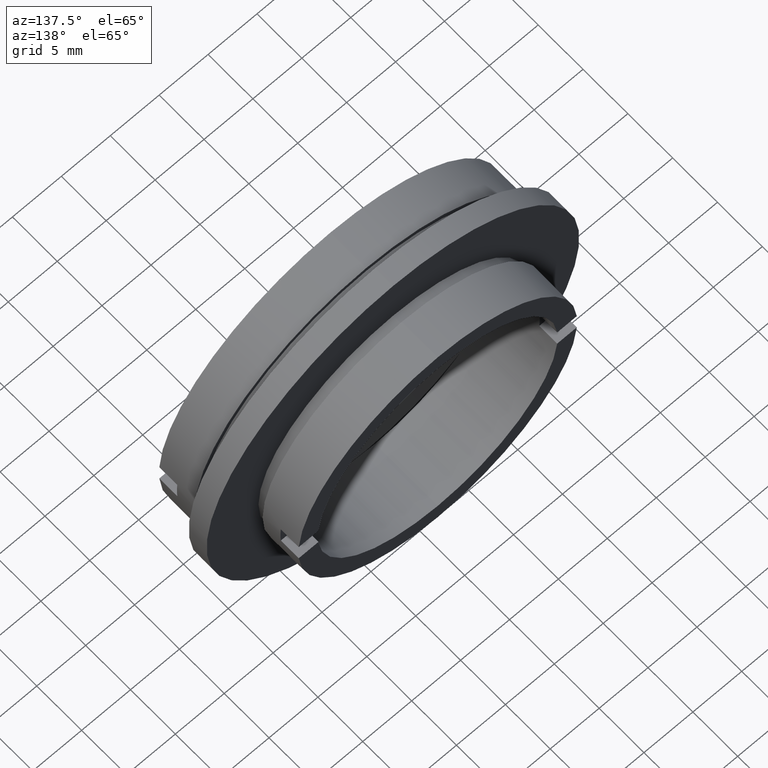
[diagram: clean part render]
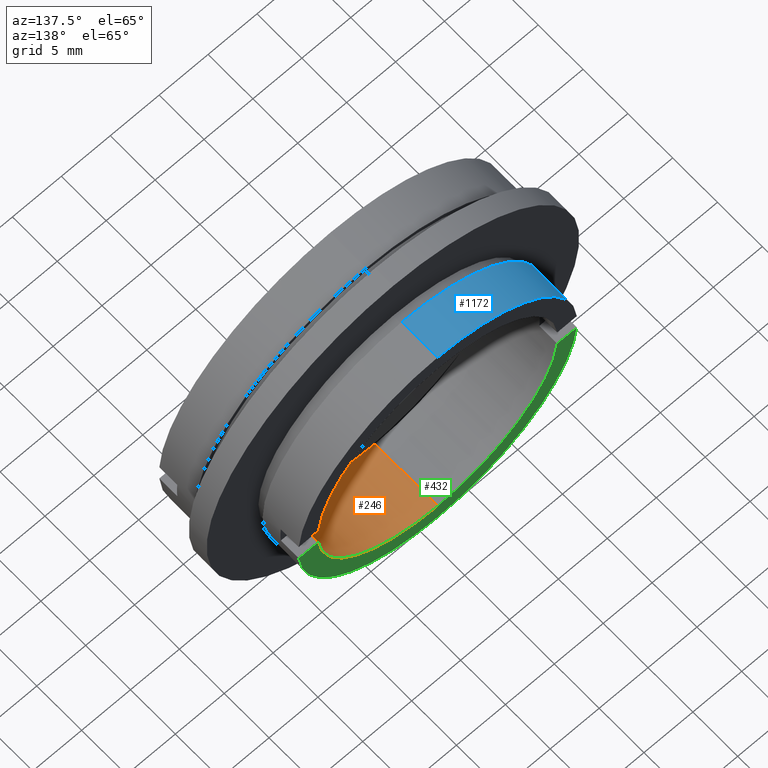
[diagram: same view with three faces highlighted in distinct colors, each labeled with its STEP entity id]
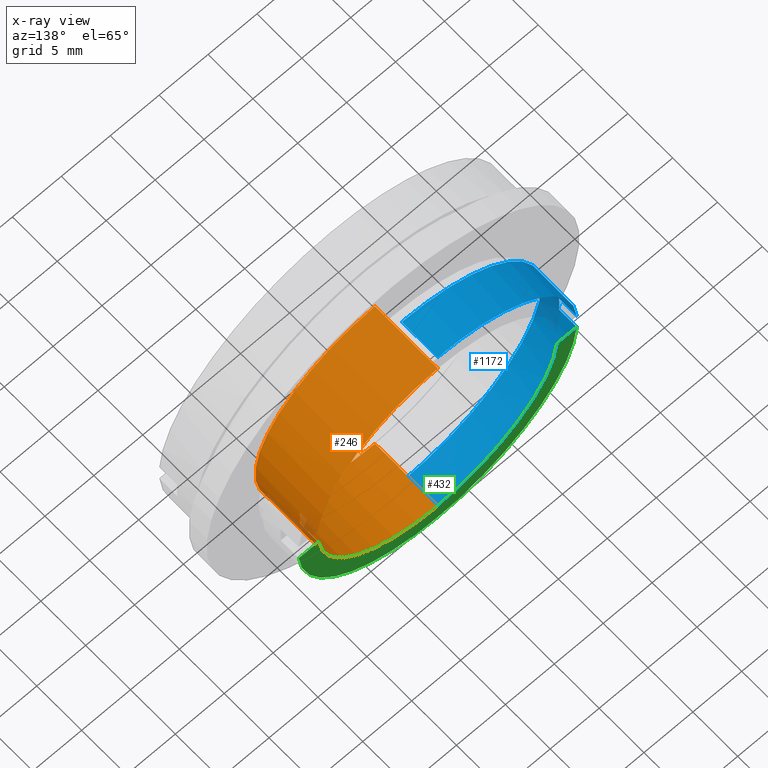
[diagram: x-ray of the same camera — body ghosted, the three highlighted faces saturated]
A machine part, auxiliary view with three faces highlighted in distinct colors.
The next image is the same camera in x-ray (body ghosted, the three faces saturated) — at least one of them is partly hidden behind the body in this view.
Their STEP definitions:

[orange] entity #246 — the highlighted cylindrical surface (partial cylindrical patch) has radius 12.25 mm, axis along (-0, 1, -0).
#44 = CARTESIAN_POINT ( 'NONE',  ( 12.20911544707478000, 22.67749945107591400, -1.000000000000000000 ) ) ;
#47 = DIRECTION ( 'NONE',  ( 0.0000000000000000000, -1.000000000000000000, 0.0000000000000000000 ) ) ;
#53 = CARTESIAN_POINT ( 'NONE',  ( 0.0000000000000000000, 22.67749945107591400, 12.25000000000000000 ) ) ;
#68 = CARTESIAN_POINT ( 'NONE',  ( 0.0000000000000000000, 10.00000000000000000, 0.0000000000000000000 ) ) ;
#80 = DIRECTION ( 'NONE',  ( -0.0000000000000000000, 1.000000000000000000, -0.0000000000000000000 ) ) ;
#109 = VERTEX_POINT ( 'NONE', #1060 ) ;
#121 = EDGE_LOOP ( 'NONE', ( #210, #378, #1267, #673, #345, #857, #556, #536 ) ) ;
#132 = CIRCLE ( 'NONE', #415, 12.24999999999999800 ) ;
#165 = CARTESIAN_POINT ( 'NONE',  ( 0.0000000000000000000, 12.00000000000000000, 0.0000000000000000000 ) ) ;
#174 = CIRCLE ( 'NONE', #543, 12.25000000000000000 ) ;
#199 = VECTOR ( 'NONE', #80, 1000.000000000000000 ) ;
#210 = ORIENTED_EDGE ( 'NONE', *, *, #1276, .F. ) ;
#224 = LINE ( 'NONE', #53, #199 ) ;
#227 = AXIS2_PLACEMENT_3D ( 'NONE', #1226, #715, #934 ) ;
#246 = ADVANCED_FACE ( 'NONE', ( #1125 ), #1195, .F. ) ;
#256 = LINE ( 'NONE', #44, #387 ) ;
#270 = VERTEX_POINT ( 'NONE', #825 ) ;
#297 = VERTEX_POINT ( 'NONE', #1273 ) ;
#318 = CIRCLE ( 'NONE', #881, 12.25000000000000000 ) ;
#324 = VERTEX_POINT ( 'NONE', #947 ) ;
#345 = ORIENTED_EDGE ( 'NONE', *, *, #418, .F. ) ;
#378 = ORIENTED_EDGE ( 'NONE', *, *, #1337, .F. ) ;
#383 = CARTESIAN_POINT ( 'NONE',  ( 0.0000000000000000000, 5.000000000000000900, 0.0000000000000000000 ) ) ;
#387 = VECTOR ( 'NONE', #47, 1000.000000000000000 ) ;
#406 = DIRECTION ( 'NONE',  ( -0.0000000000000000000, 1.000000000000000000, -0.0000000000000000000 ) ) ;
#415 = AXIS2_PLACEMENT_3D ( 'NONE', #666, #656, #604 ) ;
#418 = EDGE_CURVE ( 'NONE', #977, #930, #1124, .T. ) ;
#423 = CARTESIAN_POINT ( 'NONE',  ( 12.20911544707478100, 22.67749945107591400, 1.000000000000002900 ) ) ;
#447 = CARTESIAN_POINT ( 'NONE',  ( 12.20911544707478100, 10.00000000000000000, 1.000000000000001300 ) ) ;
#453 = CARTESIAN_POINT ( 'NONE',  ( 1.500192328955507700E-015, 5.000000000000000900, -12.25000000000000000 ) ) ;
#454 = CARTESIAN_POINT ( 'NONE',  ( 0.0000000000000000000, 12.00000000000000000, 12.24999999999999800 ) ) ;
#536 = ORIENTED_EDGE ( 'NONE', *, *, #685, .T. ) ;
#543 = AXIS2_PLACEMENT_3D ( 'NONE', #383, #1304, #1297 ) ;
#551 = CARTESIAN_POINT ( 'NONE',  ( 12.20911544707477800, 12.00000000000000000, 1.000000000000001600 ) ) ;
#556 = ORIENTED_EDGE ( 'NONE', *, *, #753, .F. ) ;
#604 = DIRECTION ( 'NONE',  ( 0.0000000000000000000, 0.0000000000000000000, 1.000000000000000000 ) ) ;
#656 = DIRECTION ( 'NONE',  ( -0.0000000000000000000, 1.000000000000000000, -0.0000000000000000000 ) ) ;
#662 = DIRECTION ( 'NONE',  ( 0.0000000000000000000, 0.0000000000000000000, 1.000000000000000000 ) ) ;
#666 = CARTESIAN_POINT ( 'NONE',  ( 0.0000000000000000000, 12.00000000000000000, 0.0000000000000000000 ) ) ;
#673 = ORIENTED_EDGE ( 'NONE', *, *, #858, .T. ) ;
#685 = EDGE_CURVE ( 'NONE', #270, #324, #132, .T. ) ;
#703 = DIRECTION ( 'NONE',  ( -0.0000000000000000000, 1.000000000000000000, -0.0000000000000000000 ) ) ;
#715 = DIRECTION ( 'NONE',  ( -0.0000000000000000000, 1.000000000000000000, -0.0000000000000000000 ) ) ;
#753 = EDGE_CURVE ( 'NONE', #270, #109, #256, .T. ) ;
#782 = EDGE_CURVE ( 'NONE', #297, #814, #224, .T. ) ;
#814 = VERTEX_POINT ( 'NONE', #454 ) ;
#816 = LINE ( 'NONE', #956, #1254 ) ;
#819 = VECTOR ( 'NONE', #406, 1000.000000000000000 ) ;
#825 = CARTESIAN_POINT ( 'NONE',  ( 12.20911544707477800, 12.00000000000000000, -0.9999999999999978900 ) ) ;
#857 = ORIENTED_EDGE ( 'NONE', *, *, #1050, .F. ) ;
#858 = EDGE_CURVE ( 'NONE', #814, #930, #1157, .T. ) ;
#881 = AXIS2_PLACEMENT_3D ( 'NONE', #68, #1139, #1141 ) ;
#930 = VERTEX_POINT ( 'NONE', #551 ) ;
#934 = DIRECTION ( 'NONE',  ( 0.0000000000000000000, 0.0000000000000000000, 1.000000000000000000 ) ) ;
#947 = CARTESIAN_POINT ( 'NONE',  ( 1.500192328955507500E-015, 12.00000000000000000, -12.24999999999999800 ) ) ;
#956 = CARTESIAN_POINT ( 'NONE',  ( 1.500192328955507700E-015, 22.67749945107591400, -12.25000000000000000 ) ) ;
#975 = VERTEX_POINT ( 'NONE', #453 ) ;
#977 = VERTEX_POINT ( 'NONE', #447 ) ;
#996 = DIRECTION ( 'NONE',  ( -0.0000000000000000000, 1.000000000000000000, -0.0000000000000000000 ) ) ;
#1050 = EDGE_CURVE ( 'NONE', #109, #977, #318, .T. ) ;
#1060 = CARTESIAN_POINT ( 'NONE',  ( 12.20911544707478100, 10.00000000000000000, -0.9999999999999974500 ) ) ;
#1124 = LINE ( 'NONE', #423, #819 ) ;
#1125 = FACE_OUTER_BOUND ( 'NONE', #121, .T. ) ;
#1139 = DIRECTION ( 'NONE',  ( -0.0000000000000000000, -1.000000000000000000, -0.0000000000000000000 ) ) ;
#1141 = DIRECTION ( 'NONE',  ( 0.0000000000000000000, 0.0000000000000000000, -1.000000000000000000 ) ) ;
#1157 = CIRCLE ( 'NONE', #1188, 12.24999999999999800 ) ;
#1188 = AXIS2_PLACEMENT_3D ( 'NONE', #165, #996, #662 ) ;
#1195 = CYLINDRICAL_SURFACE ( 'NONE', #227, 12.25000000000000000 ) ;
#1226 = CARTESIAN_POINT ( 'NONE',  ( 0.0000000000000000000, 22.67749945107591400, 0.0000000000000000000 ) ) ;
#1254 = VECTOR ( 'NONE', #703, 1000.000000000000000 ) ;
#1267 = ORIENTED_EDGE ( 'NONE', *, *, #782, .T. ) ;
#1273 = CARTESIAN_POINT ( 'NONE',  ( 0.0000000000000000000, 5.000000000000000900, 12.25000000000000000 ) ) ;
#1276 = EDGE_CURVE ( 'NONE', #975, #324, #816, .T. ) ;
#1297 = DIRECTION ( 'NONE',  ( 0.0000000000000000000, 0.0000000000000000000, 1.000000000000000000 ) ) ;
#1304 = DIRECTION ( 'NONE',  ( -0.0000000000000000000, 1.000000000000000000, -0.0000000000000000000 ) ) ;
#1337 = EDGE_CURVE ( 'NONE', #297, #975, #174, .T. ) ;

[blue] entity #1172 — the highlighted cylindrical surface (partial cylindrical patch) has radius 14.25 mm, axis along (-0, 1, -0).
#55 = CARTESIAN_POINT ( 'NONE',  ( -14.21486897582949800, 10.00000000000000000, -0.9999999999999974500 ) ) ;
#75 = EDGE_LOOP ( 'NONE', ( #1030, #333, #1015, #872, #107, #664, #527, #1282 ) ) ;
#107 = ORIENTED_EDGE ( 'NONE', *, *, #885, .F. ) ;
#130 = LINE ( 'NONE', #1265, #999 ) ;
#148 = CARTESIAN_POINT ( 'NONE',  ( 1.745121688784978200E-015, 22.67749945107591400, -14.24999999999999800 ) ) ;
#159 = AXIS2_PLACEMENT_3D ( 'NONE', #817, #920, #200 ) ;
#166 = DIRECTION ( 'NONE',  ( 0.0000000000000000000, 0.0000000000000000000, 1.000000000000000000 ) ) ;
#188 = AXIS2_PLACEMENT_3D ( 'NONE', #644, #640, #623 ) ;
#194 = CYLINDRICAL_SURFACE ( 'NONE', #855, 14.24999999999999800 ) ;
#200 = DIRECTION ( 'NONE',  ( 0.0000000000000000000, 0.0000000000000000000, -1.000000000000000000 ) ) ;
#236 = CARTESIAN_POINT ( 'NONE',  ( 0.0000000000000000000, 12.00000000000000000, 0.0000000000000000000 ) ) ;
#239 = EDGE_CURVE ( 'NONE', #860, #384, #895, .T. ) ;
#252 = CARTESIAN_POINT ( 'NONE',  ( 1.745121688784978200E-015, 12.00000000000000000, -14.24999999999999800 ) ) ;
#253 = VERTEX_POINT ( 'NONE', #501 ) ;
#285 = EDGE_CURVE ( 'NONE', #820, #890, #1212, .T. ) ;
#314 = FACE_OUTER_BOUND ( 'NONE', #75, .T. ) ;
#328 = LINE ( 'NONE', #148, #732 ) ;
#333 = ORIENTED_EDGE ( 'NONE', *, *, #419, .T. ) ;
#350 = DIRECTION ( 'NONE',  ( -0.0000000000000000000, 1.000000000000000000, -0.0000000000000000000 ) ) ;
#362 = CARTESIAN_POINT ( 'NONE',  ( 0.0000000000000000000, 22.67749945107591400, 14.24999999999999800 ) ) ;
#384 = VERTEX_POINT ( 'NONE', #1069 ) ;
#392 = CIRCLE ( 'NONE', #188, 14.24999999999999800 ) ;
#396 = EDGE_CURVE ( 'NONE', #253, #384, #875, .T. ) ;
#412 = AXIS2_PLACEMENT_3D ( 'NONE', #1039, #1053, #1257 ) ;
#419 = EDGE_CURVE ( 'NONE', #534, #253, #844, .T. ) ;
#455 = EDGE_CURVE ( 'NONE', #534, #522, #328, .T. ) ;
#468 = CARTESIAN_POINT ( 'NONE',  ( 1.745121688784978200E-015, 8.000000000000000000, -14.24999999999999800 ) ) ;
#501 = CARTESIAN_POINT ( 'NONE',  ( 0.0000000000000000000, 8.000000000000000000, 14.24999999999999800 ) ) ;
#512 = DIRECTION ( 'NONE',  ( -0.0000000000000000000, 1.000000000000000000, -0.0000000000000000000 ) ) ;
#522 = VERTEX_POINT ( 'NONE', #252 ) ;
#527 = ORIENTED_EDGE ( 'NONE', *, *, #915, .F. ) ;
#534 = VERTEX_POINT ( 'NONE', #468 ) ;
#579 = DIRECTION ( 'NONE',  ( 0.0000000000000000000, -1.000000000000000000, 0.0000000000000000000 ) ) ;
#582 = CARTESIAN_POINT ( 'NONE',  ( -14.21486897582949800, 12.00000000000000000, 1.000000000000001600 ) ) ;
#594 = CARTESIAN_POINT ( 'NONE',  ( -14.21486897582949600, 22.67749945107591400, -1.000000000000000000 ) ) ;
#606 = CARTESIAN_POINT ( 'NONE',  ( -14.21486897582949800, 10.00000000000000000, 1.000000000000001300 ) ) ;
#609 = DIRECTION ( 'NONE',  ( -0.0000000000000000000, 1.000000000000000000, -0.0000000000000000000 ) ) ;
#623 = DIRECTION ( 'NONE',  ( 0.0000000000000000000, 0.0000000000000000000, 1.000000000000000000 ) ) ;
#640 = DIRECTION ( 'NONE',  ( -0.0000000000000000000, 1.000000000000000000, -0.0000000000000000000 ) ) ;
#644 = CARTESIAN_POINT ( 'NONE',  ( 0.0000000000000000000, 12.00000000000000000, 0.0000000000000000000 ) ) ;
#664 = ORIENTED_EDGE ( 'NONE', *, *, #285, .F. ) ;
#681 = DIRECTION ( 'NONE',  ( -0.0000000000000000000, 1.000000000000000000, -0.0000000000000000000 ) ) ;
#727 = VERTEX_POINT ( 'NONE', #946 ) ;
#732 = VECTOR ( 'NONE', #894, 1000.000000000000000 ) ;
#736 = VECTOR ( 'NONE', #579, 1000.000000000000000 ) ;
#817 = CARTESIAN_POINT ( 'NONE',  ( 0.0000000000000000000, 10.00000000000000000, 0.0000000000000000000 ) ) ;
#820 = VERTEX_POINT ( 'NONE', #55 ) ;
#839 = AXIS2_PLACEMENT_3D ( 'NONE', #236, #512, #166 ) ;
#844 = CIRCLE ( 'NONE', #412, 14.24999999999999800 ) ;
#855 = AXIS2_PLACEMENT_3D ( 'NONE', #1029, #681, #938 ) ;
#859 = VECTOR ( 'NONE', #350, 1000.000000000000000 ) ;
#860 = VERTEX_POINT ( 'NONE', #582 ) ;
#865 = EDGE_CURVE ( 'NONE', #522, #727, #392, .T. ) ;
#872 = ORIENTED_EDGE ( 'NONE', *, *, #239, .F. ) ;
#875 = LINE ( 'NONE', #362, #859 ) ;
#885 = EDGE_CURVE ( 'NONE', #890, #860, #130, .T. ) ;
#890 = VERTEX_POINT ( 'NONE', #606 ) ;
#894 = DIRECTION ( 'NONE',  ( -0.0000000000000000000, 1.000000000000000000, -0.0000000000000000000 ) ) ;
#895 = CIRCLE ( 'NONE', #839, 14.24999999999999800 ) ;
#915 = EDGE_CURVE ( 'NONE', #727, #820, #1034, .T. ) ;
#920 = DIRECTION ( 'NONE',  ( 0.0000000000000000000, 1.000000000000000000, 0.0000000000000000000 ) ) ;
#938 = DIRECTION ( 'NONE',  ( 0.0000000000000000000, 0.0000000000000000000, 1.000000000000000000 ) ) ;
#946 = CARTESIAN_POINT ( 'NONE',  ( -14.21486897582949800, 12.00000000000000000, -0.9999999999999978900 ) ) ;
#999 = VECTOR ( 'NONE', #609, 1000.000000000000000 ) ;
#1015 = ORIENTED_EDGE ( 'NONE', *, *, #396, .T. ) ;
#1029 = CARTESIAN_POINT ( 'NONE',  ( 0.0000000000000000000, 22.67749945107591400, 0.0000000000000000000 ) ) ;
#1030 = ORIENTED_EDGE ( 'NONE', *, *, #455, .F. ) ;
#1034 = LINE ( 'NONE', #594, #736 ) ;
#1039 = CARTESIAN_POINT ( 'NONE',  ( 0.0000000000000000000, 8.000000000000000000, 0.0000000000000000000 ) ) ;
#1053 = DIRECTION ( 'NONE',  ( -0.0000000000000000000, 1.000000000000000000, -0.0000000000000000000 ) ) ;
#1069 = CARTESIAN_POINT ( 'NONE',  ( 0.0000000000000000000, 12.00000000000000000, 14.24999999999999800 ) ) ;
#1172 = ADVANCED_FACE ( 'NONE', ( #314 ), #194, .T. ) ;
#1212 = CIRCLE ( 'NONE', #159, 14.24999999999999800 ) ;
#1257 = DIRECTION ( 'NONE',  ( 0.0000000000000000000, 0.0000000000000000000, 1.000000000000000000 ) ) ;
#1265 = CARTESIAN_POINT ( 'NONE',  ( -14.21486897582949800, 22.67749945107591400, 1.000000000000002900 ) ) ;
#1282 = ORIENTED_EDGE ( 'NONE', *, *, #865, .F. ) ;

[green] entity #432 — the highlighted planar face has unit normal (-0, 1, 0).
#46 = VECTOR ( 'NONE', #347, 1000.000000000000000 ) ;
#81 = VERTEX_POINT ( 'NONE', #867 ) ;
#95 = ORIENTED_EDGE ( 'NONE', *, *, #1292, .F. ) ;
#132 = CIRCLE ( 'NONE', #415, 12.24999999999999800 ) ;
#188 = AXIS2_PLACEMENT_3D ( 'NONE', #644, #640, #623 ) ;
#235 = EDGE_LOOP ( 'NONE', ( #847, #388, #973, #291, #95, #645 ) ) ;
#252 = CARTESIAN_POINT ( 'NONE',  ( 1.745121688784978200E-015, 12.00000000000000000, -14.24999999999999800 ) ) ;
#270 = VERTEX_POINT ( 'NONE', #825 ) ;
#291 = ORIENTED_EDGE ( 'NONE', *, *, #882, .F. ) ;
#324 = VERTEX_POINT ( 'NONE', #947 ) ;
#347 = DIRECTION ( 'NONE',  ( -1.000000000000000000, 0.0000000000000000000, 0.0000000000000000000 ) ) ;
#364 = AXIS2_PLACEMENT_3D ( 'NONE', #1181, #854, #599 ) ;
#376 = CARTESIAN_POINT ( 'NONE',  ( 0.0000000000000000000, 12.00000000000000000, 0.0000000000000000000 ) ) ;
#388 = ORIENTED_EDGE ( 'NONE', *, *, #1160, .T. ) ;
#389 = PLANE ( 'NONE',  #1201 ) ;
#392 = CIRCLE ( 'NONE', #188, 14.24999999999999800 ) ;
#407 = AXIS2_PLACEMENT_3D ( 'NONE', #376, #922, #892 ) ;
#415 = AXIS2_PLACEMENT_3D ( 'NONE', #666, #656, #604 ) ;
#432 = ADVANCED_FACE ( 'NONE', ( #745 ), #389, .T. ) ;
#496 = CIRCLE ( 'NONE', #407, 12.24999999999999800 ) ;
#522 = VERTEX_POINT ( 'NONE', #252 ) ;
#560 = CARTESIAN_POINT ( 'NONE',  ( -12.24999999999999800, 12.00000000000000000, 0.0000000000000000000 ) ) ;
#599 = DIRECTION ( 'NONE',  ( 0.0000000000000000000, 0.0000000000000000000, 1.000000000000000000 ) ) ;
#604 = DIRECTION ( 'NONE',  ( 0.0000000000000000000, 0.0000000000000000000, 1.000000000000000000 ) ) ;
#610 = CIRCLE ( 'NONE', #364, 14.24999999999999800 ) ;
#621 = LINE ( 'NONE', #651, #1194 ) ;
#623 = DIRECTION ( 'NONE',  ( 0.0000000000000000000, 0.0000000000000000000, 1.000000000000000000 ) ) ;
#640 = DIRECTION ( 'NONE',  ( -0.0000000000000000000, 1.000000000000000000, -0.0000000000000000000 ) ) ;
#644 = CARTESIAN_POINT ( 'NONE',  ( 0.0000000000000000000, 12.00000000000000000, 0.0000000000000000000 ) ) ;
#645 = ORIENTED_EDGE ( 'NONE', *, *, #685, .F. ) ;
#651 = CARTESIAN_POINT ( 'NONE',  ( -12.24999999999999800, 12.00000000000000000, -0.9999999999999978900 ) ) ;
#656 = DIRECTION ( 'NONE',  ( -0.0000000000000000000, 1.000000000000000000, -0.0000000000000000000 ) ) ;
#661 = DIRECTION ( 'NONE',  ( -1.000000000000000000, 0.0000000000000000000, 0.0000000000000000000 ) ) ;
#666 = CARTESIAN_POINT ( 'NONE',  ( 0.0000000000000000000, 12.00000000000000000, 0.0000000000000000000 ) ) ;
#685 = EDGE_CURVE ( 'NONE', #270, #324, #132, .T. ) ;
#727 = VERTEX_POINT ( 'NONE', #946 ) ;
#745 = FACE_OUTER_BOUND ( 'NONE', #235, .T. ) ;
#824 = LINE ( 'NONE', #1178, #46 ) ;
#825 = CARTESIAN_POINT ( 'NONE',  ( 12.20911544707477800, 12.00000000000000000, -0.9999999999999978900 ) ) ;
#847 = ORIENTED_EDGE ( 'NONE', *, *, #986, .F. ) ;
#854 = DIRECTION ( 'NONE',  ( -0.0000000000000000000, 1.000000000000000000, -0.0000000000000000000 ) ) ;
#865 = EDGE_CURVE ( 'NONE', #522, #727, #392, .T. ) ;
#867 = CARTESIAN_POINT ( 'NONE',  ( 14.21486897582949800, 12.00000000000000000, -0.9999999999999978900 ) ) ;
#882 = EDGE_CURVE ( 'NONE', #1046, #727, #621, .T. ) ;
#892 = DIRECTION ( 'NONE',  ( 0.0000000000000000000, 0.0000000000000000000, 1.000000000000000000 ) ) ;
#922 = DIRECTION ( 'NONE',  ( -0.0000000000000000000, 1.000000000000000000, -0.0000000000000000000 ) ) ;
#946 = CARTESIAN_POINT ( 'NONE',  ( -14.21486897582949800, 12.00000000000000000, -0.9999999999999978900 ) ) ;
#947 = CARTESIAN_POINT ( 'NONE',  ( 1.500192328955507500E-015, 12.00000000000000000, -12.24999999999999800 ) ) ;
#973 = ORIENTED_EDGE ( 'NONE', *, *, #865, .T. ) ;
#986 = EDGE_CURVE ( 'NONE', #81, #270, #824, .T. ) ;
#1046 = VERTEX_POINT ( 'NONE', #1335 ) ;
#1155 = DIRECTION ( 'NONE',  ( -0.0000000000000000000, 1.000000000000000000, 0.0000000000000000000 ) ) ;
#1160 = EDGE_CURVE ( 'NONE', #81, #522, #610, .T. ) ;
#1174 = DIRECTION ( 'NONE',  ( 0.0000000000000000000, 0.0000000000000000000, 1.000000000000000000 ) ) ;
#1178 = CARTESIAN_POINT ( 'NONE',  ( -12.24999999999999800, 12.00000000000000000, -0.9999999999999978900 ) ) ;
#1181 = CARTESIAN_POINT ( 'NONE',  ( 0.0000000000000000000, 12.00000000000000000, 0.0000000000000000000 ) ) ;
#1194 = VECTOR ( 'NONE', #661, 1000.000000000000000 ) ;
#1201 = AXIS2_PLACEMENT_3D ( 'NONE', #560, #1155, #1174 ) ;
#1292 = EDGE_CURVE ( 'NONE', #324, #1046, #496, .T. ) ;
#1335 = CARTESIAN_POINT ( 'NONE',  ( -12.20911544707477800, 12.00000000000000000, -0.9999999999999978900 ) ) ;